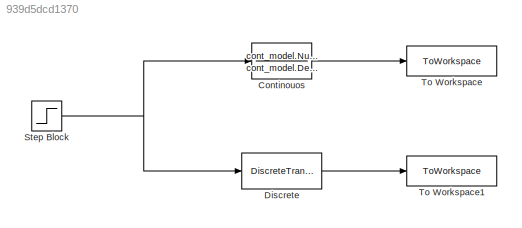
MODEL slx_939d5dcd1370
KIND model
CONFIG AbsTol = auto
CONFIG EnableMultiTasking = off
CONFIG FixedStep = 0.0001
CONFIG MaxStep = auto
CONFIG MinStep = auto
CONFIG RelTol = 1e-3
CONFIG SampleTimeConstraint = Unconstrained
CONFIG SolverName = FixedStepAuto
CONFIG StartTime = 0.0
CONFIG StopTime = 20
BLOCK [TransferFcn] Continouos
  Denominator = cont_model.Denominator{1,1}
  Numerator = cont_model.Numerator{1,1}
BLOCK [DiscreteTransferFcn] Discrete
  Denominator = disc_model.Denominator{1,1}
  InputPortMap = u0
  Numerator = disc_model.Numerator{1,1}
  SampleTime = Ts
BLOCK [Step] Step Block
  After = final_value
  Before = init_value
  SampleTime = 0
  Time = time_step
BLOCK [ToWorkspace] To Workspace
  FixptAsFi = on
  MaxDataPoints = inf
  SampleTime = -1
  Save2DSignal = 2-D array (concatenate along first dimension)
  VariableName = ciagly
BLOCK [ToWorkspace] To Workspace1
  FixptAsFi = on
  MaxDataPoints = inf
  SampleTime = -1
  Save2DSignal = 2-D array (concatenate along first dimension)
  VariableName = dyskr
LINE Continouos:1 -> To Workspace:1
LINE Discrete:1 -> To Workspace1:1
NET Step Block:1 -> Continouos:1, Discrete:1
note: NET lines group one-source signal fan-out (src -> all destinations, sorted); 1:1 wires keep LINE
